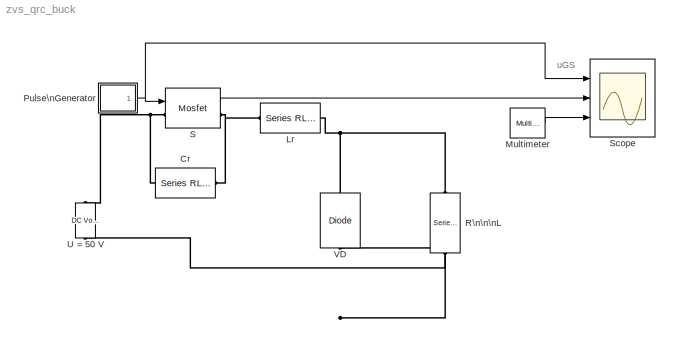
MODEL zvs_qrc_buck
KIND model
BLOCK [Reference] Cr  REF=powerlib/Elements/Series RLC Branch
  AttributesFormatString = \\n
  Capacitance = 3e-7
  Inductance = 0
  LConnTagsString = __new0
  LeftPortType = p1
  Measurements = None
  PhysicalDomain = powersysdomain
  Ports = [0, 0, 0, 0, 0, 1, 1]
  RConnTagsString = __new0
  Resistance = 0
  RightPortType = p1
  SourceBlock = powerlib/Elements/Series RLC Branch
  SourceType = Series RLC Branch
  SubClassName = unknown
BLOCK [Reference] Lr  REF=powerlib/Elements/Series RLC Branch
  AttributesFormatString = \\n
  Capacitance = inf
  Inductance = 2e-6
  LConnTagsString = __new0
  LeftPortType = p1
  Measurements = Branch current
  PhysicalDomain = powersysdomain
  Ports = [0, 0, 0, 0, 0, 1, 1]
  RConnTagsString = __new0
  Resistance = 0
  RightPortType = p1
  SourceBlock = powerlib/Elements/Series RLC Branch
  SourceType = Series RLC Branch
  SubClassName = unknown
BLOCK [Reference] Multimeter  REF=powerlib/Measurements/Multimeter
  AxesSetting = [0,0.1,-100,100]
  Display = 0
  Gain = [1 1]
  L = 2
  OutputType = Complex
  PSBOutputType = 1
  PSBequivalent = 0
  PhasorSimulation = off
  Ports = [0, 1]
  SavedBlockNames = -11
  ShowPortLabels = on
  SourceBlock = powerlib/Measurements/Multimeter
  SourceType = MultimeterPSB
  sel = [1 2]
  yselected = {'Ub: R   L','Ib: Lr'};
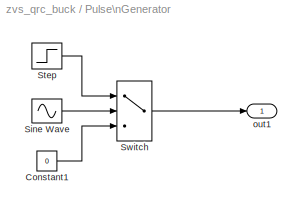
BLOCK [SubSystem] Pulse\nGenerator
  MaskCallbackString = |||
  MaskDescription = Pulse Generator
  MaskDisplay = plot(0,0,100,100,[95,90,90,75,75,60,60,45,45,30,30,15,15,5],[25,25,75,75,25,25,75,75,25,25,75,75,25,25]); \n                                                                                                          \n
  MaskEnableString = on,on,on,on
  MaskHelp = Pulse generator which ensures pulse transitions are hit. Provides a vector of pulses when the height is entered as a vector.  Unmask to see how it works.
  MaskIconFrame = on
  MaskIconOpaque = on
  MaskIconRotate = none
  MaskIconUnits = autoscale
  MaskInitialization = \n
  MaskPromptString = Period (secs):|Duty cycle (% of period):|Amplitude:|Start time:
  MaskStyleString = edit,edit,edit,edit
  MaskTabNameString = ,,,
  MaskToolTipString = on,on,on,on
  MaskTunableValueString = on,on,on,on
  MaskType = Pulse Generator
  MaskValueString = 1e-5|60|1|0
  MaskVarAliasString = ,,,
  MaskVariables = period=@1;duty=@2;amplitude=@3;start=@4;
  MaskVisibilityString = on,on,on,on
  MinAlgLoopOccurrences = off
  Ports = [0, 1]
  RTWSystemCode = Auto
  TreatAsAtomicUnit = off
BLOCK [Constant] Pulse\nGenerator/Constant1
  Value = 0
BLOCK [Sin] Pulse\nGenerator/Sine Wave
  Frequency = 2*pi./period
  Phase = -2*pi*(start./period + duty/200 - 1/4)
  Ports = [0, 1]
  SampleTime = 0
  SineType = Time based
BLOCK [Step] Pulse\nGenerator/Step
  After = amplitude
  SampleTime = 0
  Time = start
BLOCK [Switch] Pulse\nGenerator/Switch
  Threshold = sin(pi*(0.5 - duty/100))
BLOCK [Outport] Pulse\nGenerator/out1
  BusOutputAsStruct = off
  IconDisplay = Port number
  InitialOutput = 0
BLOCK [Reference] R\n\n\nL  REF=powerlib/Elements/Series RLC Branch
  AttributesFormatString = \\n
  Capacitance = inf
  Inductance = 1e-04
  LConnTagsString = __new0
  LeftPortType = p1
  Measurements = Branch voltage
  PhysicalDomain = powersysdomain
  Ports = [0, 0, 0, 0, 0, 1, 1]
  RConnTagsString = __new0
  Resistance = 1
  RightPortType = p1
  SourceBlock = powerlib/Elements/Series RLC Branch
  SourceType = Series RLC Branch
  SubClassName = unknown
BLOCK [Reference] S  REF=powerlib/Power\nElectronics/Mosfet
  Cs = 1e-7
  IC = 10
  Lon = 1e-9
  Measurements = on
  Ports = [1, 1, 0, 0, 0, 1, 1]
  Rd = 0.05
  Ron = 0.05
  Rs = 1000
  ShowPortLabels = on
  SourceBlock = powerlib/Power\nElectronics/Mosfet
  SourceType = Mosfet
BLOCK [Scope] Scope
  DataFormat = Array
  LimitDataPoints = off
  MaxDataPoints = 500000
  NumInputPorts = 3
  Ports = [3]
  TimeRange = 2e-005
  YMax = 1.5~200~100
  YMin = -0.5~-50~-50
  ZoomMode = xonly
BLOCK [Reference] U = 50 V  REF=powerlib/Electrical\nSources/DC Voltage Source
  Amplitude = 50
  AttributesFormatString = \\n
  Description = source block
  Measurements = None
  Ports = [0, 0, 0, 0, 0, 1, 1]
  ShowPortLabels = on
  SourceBlock = powerlib/Electrical\nSources/DC Voltage Source
  SourceType = DC Voltage Source
BLOCK [Reference] VD  REF=powerlib/Power\nElectronics/Diode
  AttributesFormatString = \\n
  Cs = 1e-8
  IC = 0
  Lon = 0
  Measurements = off
  Ports = [0, 0, 0, 0, 0, 1, 1]
  Ron = 0.01
  Rs = 1000
  ShowPortLabels = on
  SourceBlock = powerlib/Power\nElectronics/Diode
  SourceType = Diode
  Vf = 0
ANNOTATION (root): uGS
LINE Multimeter:1 -> Scope:3
LINE Pulse\nGenerator/Constant1:1 -> Pulse\nGenerator/Switch:3
LINE Pulse\nGenerator/Sine Wave:1 -> Pulse\nGenerator/Switch:2
LINE Pulse\nGenerator/Step:1 -> Pulse\nGenerator/Switch:1
LINE Pulse\nGenerator/Switch:1 -> Pulse\nGenerator/out1:1
NET Pulse\nGenerator:1 -> S:1, Scope:1
LINE S:1 -> Scope:2
PNET net1: Cr:LConn1 -- Lr:LConn1 -- S:RConn1
PNET net2: Cr:RConn1 -- S:LConn1 -- U = 50 V:RConn1
PNET net3: Lr:RConn1 -- R\n\n\nL:LConn1 -- VD:RConn1
PNET net4: R\n\n\nL:RConn1 -- U = 50 V:LConn1 -- VD:LConn1
note: NET lines group one-source signal fan-out (src -> all destinations, sorted); 1:1 wires keep LINE; PNET lines group multi-terminal physical nets as a canonical sorted terminal list (undirected conserving connections); 2-terminal nets keep the pairwise PLINE form
